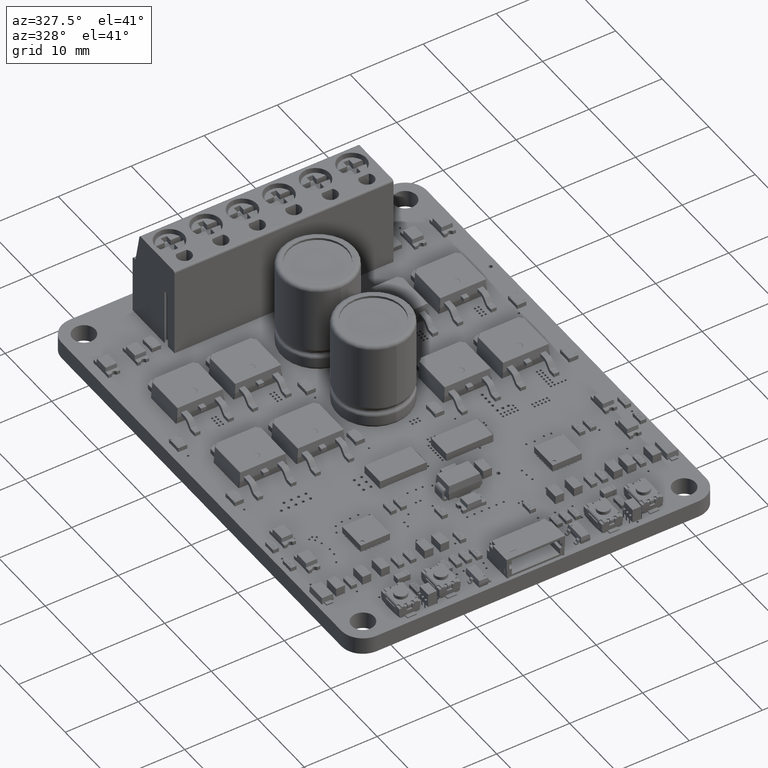
[diagram: clean part render]
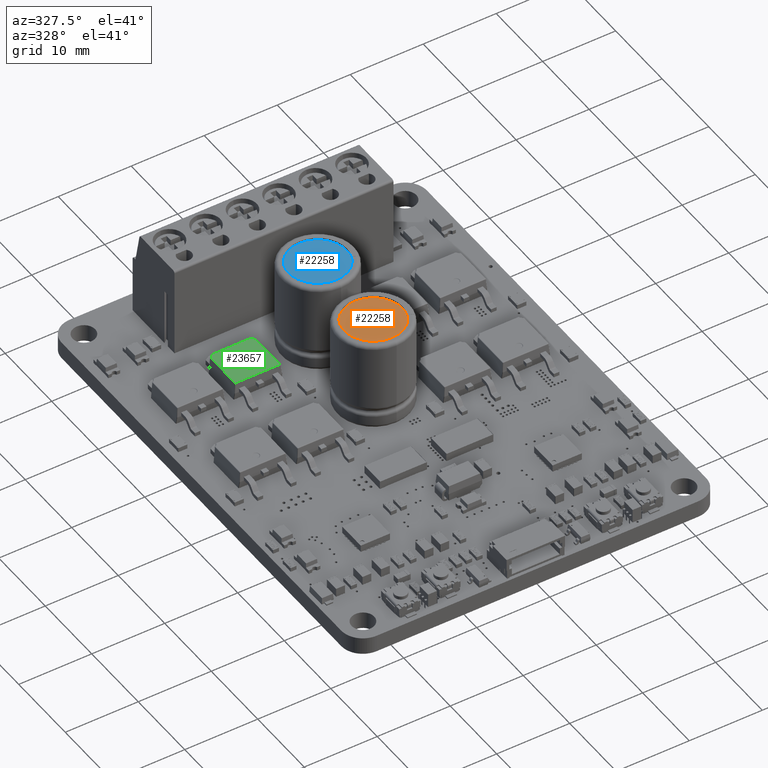
[diagram: same view with three faces highlighted in distinct colors, each labeled with its STEP entity id]
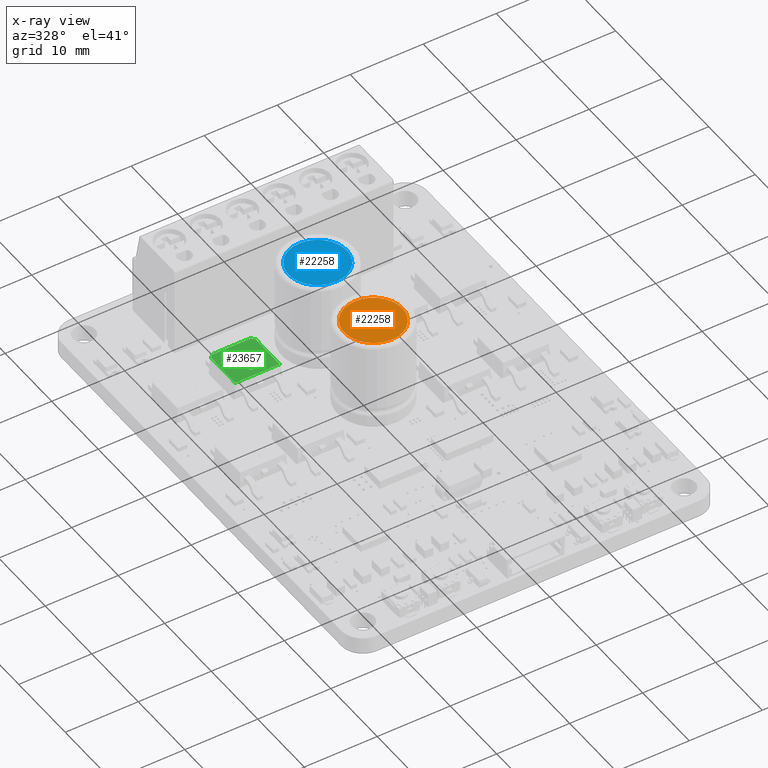
[diagram: x-ray of the same camera — body ghosted, the three highlighted faces saturated]
A machine part, auxiliary view with three faces highlighted in distinct colors.
The next image is the same camera in x-ray (body ghosted, the three faces saturated) — at least one of them is partly hidden behind the body in this view.
Their STEP definitions:

[orange] entity #22258 — the highlighted planar face has unit normal (0, -0, 1).
#21689 = VERTEX_POINT('',#21690);
#21690 = CARTESIAN_POINT('',(0.,12.2,-4.));
#21696 = EDGE_CURVE('',#21697,#21689,#21699,.T.);
#21697 = VERTEX_POINT('',#21698);
#21698 = CARTESIAN_POINT('',(4.898587196589E-16,12.2,4.));
#21699 = CIRCLE('',#21700,4.);
#21700 = AXIS2_PLACEMENT_3D('',#21701,#21702,#21703);
#21701 = CARTESIAN_POINT('',(0.,12.2,0.));
#21702 = DIRECTION('',(0.,-1.,0.));
#21703 = DIRECTION('',(0.,0.,-1.));
#21729 = VERTEX_POINT('',#21730);
#21730 = CARTESIAN_POINT('',(3.694051972713,12.2,-1.534268562832));
#21738 = EDGE_CURVE('',#21689,#21729,#21739,.T.);
#21739 = CIRCLE('',#21740,4.);
#21740 = AXIS2_PLACEMENT_3D('',#21741,#21742,#21743);
#21741 = CARTESIAN_POINT('',(0.,12.2,0.));
#21742 = DIRECTION('',(0.,-1.,0.));
#21743 = DIRECTION('',(0.,0.,-1.));
#22258 = ADVANCED_FACE('',(#22259),#22295,.T.);
#22259 = FACE_BOUND('',#22260,.T.);
#22260 = EDGE_LOOP('',(#22261,#22271,#22280,#22286,#22287,#22288));
#22261 = ORIENTED_EDGE('',*,*,#22262,.F.);
#22262 = EDGE_CURVE('',#22263,#22265,#22267,.T.);
#22263 = VERTEX_POINT('',#22264);
#22264 = CARTESIAN_POINT('',(3.685518130045,12.2,1.53073372946));
#22265 = VERTEX_POINT('',#22266);
#22266 = CARTESIAN_POINT('',(3.694051972713,12.2,1.534268562832));
#22267 = LINE('',#22268,#22269);
#22268 = CARTESIAN_POINT('',(-1.464466094067E-03,12.2,3.535533905932E-03
    ));
#22269 = VECTOR('',#22270,1.);
#22270 = DIRECTION('',(0.923879532511,0.,0.382683432365));
#22271 = ORIENTED_EDGE('',*,*,#22272,.T.);
#22272 = EDGE_CURVE('',#22263,#22273,#22275,.T.);
#22273 = VERTEX_POINT('',#22274);
#22274 = CARTESIAN_POINT('',(3.685518130045,12.2,-1.53073372946));
#22275 = CIRCLE('',#22276,4.);
#22276 = AXIS2_PLACEMENT_3D('',#22277,#22278,#22279);
#22277 = CARTESIAN_POINT('',(-1.E-02,12.2,0.));
#22278 = DIRECTION('',(-0.,1.,0.));
#22279 = DIRECTION('',(0.,0.,1.));
#22280 = ORIENTED_EDGE('',*,*,#22281,.T.);
#22281 = EDGE_CURVE('',#22273,#21729,#22282,.T.);
#22282 = LINE('',#22283,#22284);
#22283 = CARTESIAN_POINT('',(-1.464466094067E-03,12.2,
    -3.535533905933E-03));
#22284 = VECTOR('',#22285,1.);
#22285 = DIRECTION('',(0.923879532511,0.,-0.382683432365));
#22286 = ORIENTED_EDGE('',*,*,#21738,.F.);
#22287 = ORIENTED_EDGE('',*,*,#21696,.F.);
#22288 = ORIENTED_EDGE('',*,*,#22289,.F.);
#22289 = EDGE_CURVE('',#22265,#21697,#22290,.T.);
#22290 = CIRCLE('',#22291,4.);
#22291 = AXIS2_PLACEMENT_3D('',#22292,#22293,#22294);
#22292 = CARTESIAN_POINT('',(0.,12.2,0.));
#22293 = DIRECTION('',(0.,-1.,0.));
#22294 = DIRECTION('',(0.,0.,-1.));
#22295 = PLANE('',#22296);
#22296 = AXIS2_PLACEMENT_3D('',#22297,#22298,#22299);
#22297 = CARTESIAN_POINT('',(0.,12.2,0.));
#22298 = DIRECTION('',(-0.,1.,0.));
#22299 = DIRECTION('',(0.,0.,1.));

[blue] entity #22258 — the highlighted planar face has unit normal (0, -0, 1).
#21689 = VERTEX_POINT('',#21690);
#21690 = CARTESIAN_POINT('',(0.,12.2,-4.));
#21696 = EDGE_CURVE('',#21697,#21689,#21699,.T.);
#21697 = VERTEX_POINT('',#21698);
#21698 = CARTESIAN_POINT('',(4.898587196589E-16,12.2,4.));
#21699 = CIRCLE('',#21700,4.);
#21700 = AXIS2_PLACEMENT_3D('',#21701,#21702,#21703);
#21701 = CARTESIAN_POINT('',(0.,12.2,0.));
#21702 = DIRECTION('',(0.,-1.,0.));
#21703 = DIRECTION('',(0.,0.,-1.));
#21729 = VERTEX_POINT('',#21730);
#21730 = CARTESIAN_POINT('',(3.694051972713,12.2,-1.534268562832));
#21738 = EDGE_CURVE('',#21689,#21729,#21739,.T.);
#21739 = CIRCLE('',#21740,4.);
#21740 = AXIS2_PLACEMENT_3D('',#21741,#21742,#21743);
#21741 = CARTESIAN_POINT('',(0.,12.2,0.));
#21742 = DIRECTION('',(0.,-1.,0.));
#21743 = DIRECTION('',(0.,0.,-1.));
#22258 = ADVANCED_FACE('',(#22259),#22295,.T.);
#22259 = FACE_BOUND('',#22260,.T.);
#22260 = EDGE_LOOP('',(#22261,#22271,#22280,#22286,#22287,#22288));
#22261 = ORIENTED_EDGE('',*,*,#22262,.F.);
#22262 = EDGE_CURVE('',#22263,#22265,#22267,.T.);
#22263 = VERTEX_POINT('',#22264);
#22264 = CARTESIAN_POINT('',(3.685518130045,12.2,1.53073372946));
#22265 = VERTEX_POINT('',#22266);
#22266 = CARTESIAN_POINT('',(3.694051972713,12.2,1.534268562832));
#22267 = LINE('',#22268,#22269);
#22268 = CARTESIAN_POINT('',(-1.464466094067E-03,12.2,3.535533905932E-03
    ));
#22269 = VECTOR('',#22270,1.);
#22270 = DIRECTION('',(0.923879532511,0.,0.382683432365));
#22271 = ORIENTED_EDGE('',*,*,#22272,.T.);
#22272 = EDGE_CURVE('',#22263,#22273,#22275,.T.);
#22273 = VERTEX_POINT('',#22274);
#22274 = CARTESIAN_POINT('',(3.685518130045,12.2,-1.53073372946));
#22275 = CIRCLE('',#22276,4.);
#22276 = AXIS2_PLACEMENT_3D('',#22277,#22278,#22279);
#22277 = CARTESIAN_POINT('',(-1.E-02,12.2,0.));
#22278 = DIRECTION('',(-0.,1.,0.));
#22279 = DIRECTION('',(0.,0.,1.));
#22280 = ORIENTED_EDGE('',*,*,#22281,.T.);
#22281 = EDGE_CURVE('',#22273,#21729,#22282,.T.);
#22282 = LINE('',#22283,#22284);
#22283 = CARTESIAN_POINT('',(-1.464466094067E-03,12.2,
    -3.535533905933E-03));
#22284 = VECTOR('',#22285,1.);
#22285 = DIRECTION('',(0.923879532511,0.,-0.382683432365));
#22286 = ORIENTED_EDGE('',*,*,#21738,.F.);
#22287 = ORIENTED_EDGE('',*,*,#21696,.F.);
#22288 = ORIENTED_EDGE('',*,*,#22289,.F.);
#22289 = EDGE_CURVE('',#22265,#21697,#22290,.T.);
#22290 = CIRCLE('',#22291,4.);
#22291 = AXIS2_PLACEMENT_3D('',#22292,#22293,#22294);
#22292 = CARTESIAN_POINT('',(0.,12.2,0.));
#22293 = DIRECTION('',(0.,-1.,0.));
#22294 = DIRECTION('',(0.,0.,-1.));
#22295 = PLANE('',#22296);
#22296 = AXIS2_PLACEMENT_3D('',#22297,#22298,#22299);
#22297 = CARTESIAN_POINT('',(0.,12.2,0.));
#22298 = DIRECTION('',(-0.,1.,0.));
#22299 = DIRECTION('',(0.,0.,1.));

[green] entity #23657 — the highlighted planar face has unit normal (0, 0, 1).
#23657 = ADVANCED_FACE('',(#23658,#23710),#23721,.T.);
#23658 = FACE_BOUND('',#23659,.T.);
#23659 = EDGE_LOOP('',(#23660,#23671,#23679,#23688,#23696,#23704));
#23660 = ORIENTED_EDGE('',*,*,#23661,.F.);
#23661 = EDGE_CURVE('',#23662,#23664,#23666,.T.);
#23662 = VERTEX_POINT('',#23663);
#23663 = CARTESIAN_POINT('',(2.661675548086,3.596012722964,2.3876));
#23664 = VERTEX_POINT('',#23665);
#23665 = CARTESIAN_POINT('',(3.064978949569,3.149154917165,2.3876));
#23666 = CIRCLE('',#23667,1.179945706719);
#23667 = AXIS2_PLACEMENT_3D('',#23668,#23669,#23670);
#23668 = CARTESIAN_POINT('',(3.710295897391,4.137,2.3876));
#23669 = DIRECTION('',(0.,0.,1.));
#23670 = DIRECTION('',(-0.888702203247,-0.458484889549,0.));
#23671 = ORIENTED_EDGE('',*,*,#23672,.F.);
#23672 = EDGE_CURVE('',#23673,#23662,#23675,.T.);
#23673 = VERTEX_POINT('',#23674);
#23674 = CARTESIAN_POINT('',(-2.66167554808,3.596012722967,2.3876));
#23675 = LINE('',#23676,#23677);
#23676 = CARTESIAN_POINT('',(-2.661675548043,3.596012722948,2.3876));
#23677 = VECTOR('',#23678,1.);
#23678 = DIRECTION('',(1.,0.,0.));
#23679 = ORIENTED_EDGE('',*,*,#23680,.F.);
#23680 = EDGE_CURVE('',#23681,#23673,#23683,.T.);
#23681 = VERTEX_POINT('',#23682);
#23682 = CARTESIAN_POINT('',(-3.064978949569,3.149154917165,2.3876));
#23683 = CIRCLE('',#23684,1.179945706719);
#23684 = AXIS2_PLACEMENT_3D('',#23685,#23686,#23687);
#23685 = CARTESIAN_POINT('',(-3.710295897391,4.137,2.3876));
#23686 = DIRECTION('',(-0.,0.,1.));
#23687 = DIRECTION('',(0.546903933073,-0.837195370263,0.));
#23688 = ORIENTED_EDGE('',*,*,#23689,.F.);
#23689 = EDGE_CURVE('',#23690,#23681,#23692,.T.);
#23690 = VERTEX_POINT('',#23691);
#23691 = CARTESIAN_POINT('',(-3.064978949564,-2.07296761309,2.3876));
#23692 = LINE('',#23693,#23694);
#23693 = CARTESIAN_POINT('',(-3.064978949564,-2.07296761309,2.3876));
#23694 = VECTOR('',#23695,1.);
#23695 = DIRECTION('',(8.503998274224E-17,1.,0.));
#23696 = ORIENTED_EDGE('',*,*,#23697,.T.);
#23697 = EDGE_CURVE('',#23690,#23698,#23700,.T.);
#23698 = VERTEX_POINT('',#23699);
#23699 = CARTESIAN_POINT('',(3.064978949564,-2.07296761309,2.3876));
#23700 = LINE('',#23701,#23702);
#23701 = CARTESIAN_POINT('',(-3.064978949564,-2.07296761309,2.3876));
#23702 = VECTOR('',#23703,1.);
#23703 = DIRECTION('',(1.,0.,0.));
#23704 = ORIENTED_EDGE('',*,*,#23705,.F.);
#23705 = EDGE_CURVE('',#23664,#23698,#23706,.T.);
#23706 = LINE('',#23707,#23708);
#23707 = CARTESIAN_POINT('',(3.064978949564,3.149154917157,2.3876));
#23708 = VECTOR('',#23709,1.);
#23709 = DIRECTION('',(8.503998274224E-17,-1.,0.));
#23710 = FACE_BOUND('',#23711,.T.);
#23711 = EDGE_LOOP('',(#23712));
#23712 = ORIENTED_EDGE('',*,*,#23713,.F.);
#23713 = EDGE_CURVE('',#23714,#23714,#23716,.T.);
#23714 = VERTEX_POINT('',#23715);
#23715 = CARTESIAN_POINT('',(0.5,-0.636,2.3876));
#23716 = CIRCLE('',#23717,0.5);
#23717 = AXIS2_PLACEMENT_3D('',#23718,#23719,#23720);
#23718 = CARTESIAN_POINT('',(-3.894376821289E-17,-0.636,2.3876));
#23719 = DIRECTION('',(0.,0.,1.));
#23720 = DIRECTION('',(1.,0.,-0.));
#23721 = PLANE('',#23722);
#23722 = AXIS2_PLACEMENT_3D('',#23723,#23724,#23725);
#23723 = CARTESIAN_POINT('',(0.,0.,2.3876));
#23724 = DIRECTION('',(0.,0.,1.));
#23725 = DIRECTION('',(1.,0.,-0.));